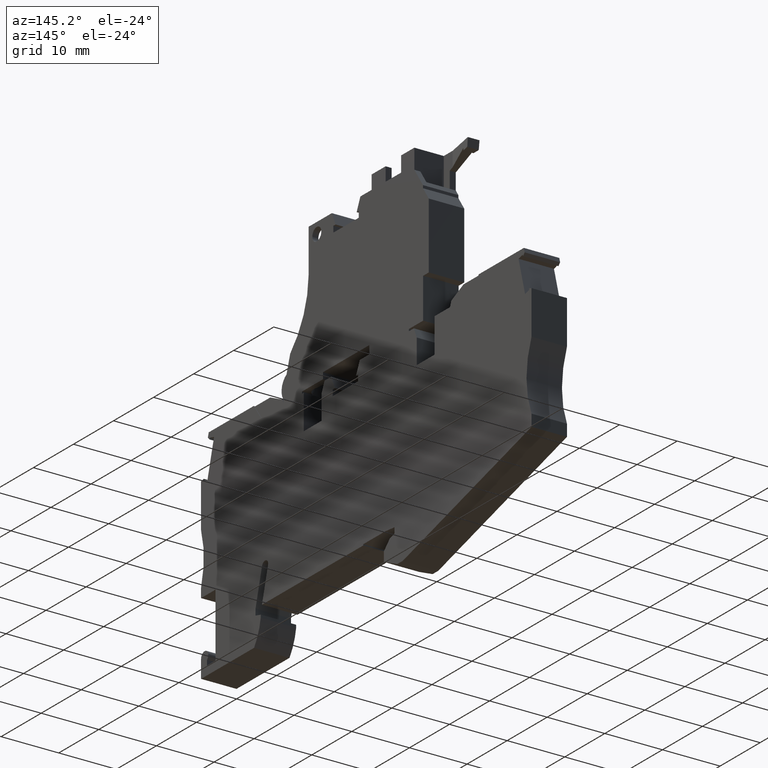
[diagram: clean part render]
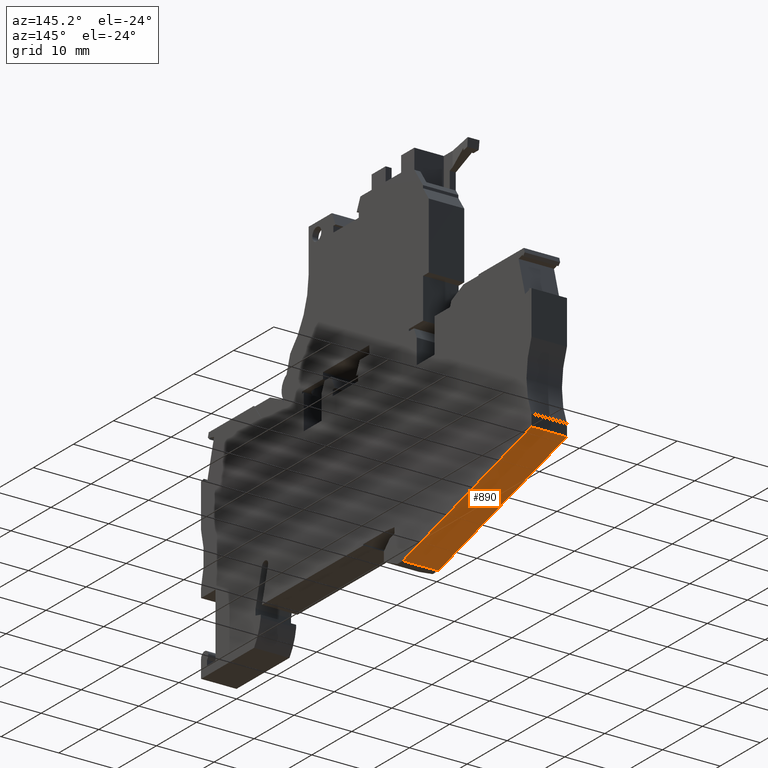
[diagram: same view with one face highlighted and labeled with its STEP entity id]
A machine part, auxiliary view. The second image highlights one B-rep face of the part: STEP entity #890.
In plain terms, the highlighted planar face has unit normal (0, -0.274, 0.9617).
Its self-contained STEP definition (entity closure, byte-faithful):
#500=CARTESIAN_POINT('',(56.0736137611891,0.747911226867399,
-6.28140965590943));
#510=DIRECTION('',(-0.389131182615691,0.921182350415005,
3.6058695801346E-14));
#520=DIRECTION('',(0.921182350415005,0.389131182615691,
-1.26581139034291E-13));
#530=AXIS2_PLACEMENT_3D('',#500,#510,#520);
#540=PLANE('',#530);
#550=CARTESIAN_POINT('',(26.4095586373212,-11.7829507097811,
-5.65000000003503));
#560=DIRECTION('',(-0.921182350415005,-0.389131182615691,
1.26581139034291E-13));
#570=VECTOR('',#560,1.);
#580=LINE('',#550,#570);
#590=CARTESIAN_POINT('',(86.5824697081938,13.6356388190876,
-5.6500000000433));
#600=VERTEX_POINT('',#590);
#610=CARTESIAN_POINT('',(55.8163182368183,0.639222961579843,
-5.65000000003907));
#620=VERTEX_POINT('',#610);
#630=EDGE_CURVE('',#600,#620,#580,.T.);
#640=ORIENTED_EDGE('',*,*,#630,.F.);
#650=CARTESIAN_POINT('',(55.8163182368192,0.639222961579943,
0.499999999995063));
#660=DIRECTION('',(-1.30570031941351E-13,-1.60122207459962E-14,-1.));
#670=VECTOR('',#660,1.);
#680=LINE('',#650,#670);
#690=CARTESIAN_POINT('',(55.8163182368192,0.639222961579942,
0.499999999960934));
#700=VERTEX_POINT('',#690);
#710=EDGE_CURVE('',#700,#620,#680,.T.);
#720=ORIENTED_EDGE('',*,*,#710,.T.);
#730=CARTESIAN_POINT('',(26.409558637322,-11.782950709781,
0.499999999964974));
#740=DIRECTION('',(0.921182350415005,0.389131182615691,
-1.26581139034291E-13));
#750=VECTOR('',#740,1.);
#760=LINE('',#730,#750);
#770=CARTESIAN_POINT('',(86.5824697081946,13.6356388190877,
0.499999999956705));
#780=VERTEX_POINT('',#770);
#790=EDGE_CURVE('',#700,#780,#760,.T.);
#800=ORIENTED_EDGE('',*,*,#790,.F.);
#810=CARTESIAN_POINT('',(86.5824697081946,13.6356388190877,
0.499999999990835));
#820=DIRECTION('',(1.30635874114574E-13,1.60400341780714E-14,1.));
#830=VECTOR('',#820,1.);
#840=LINE('',#810,#830);
#850=EDGE_CURVE('',#600,#780,#840,.T.);
#860=ORIENTED_EDGE('',*,*,#850,.T.);
#870=EDGE_LOOP('',(#860,#800,#720,#640));
#880=FACE_OUTER_BOUND('',#870,.T.);
#890=ADVANCED_FACE('',(#880),#540,.F.);